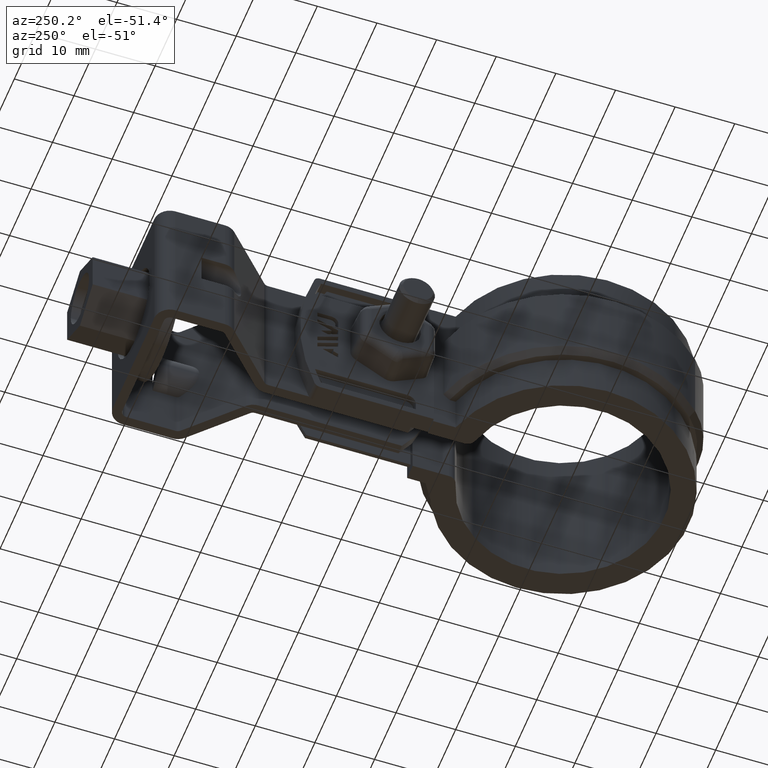
[diagram: clean part render]
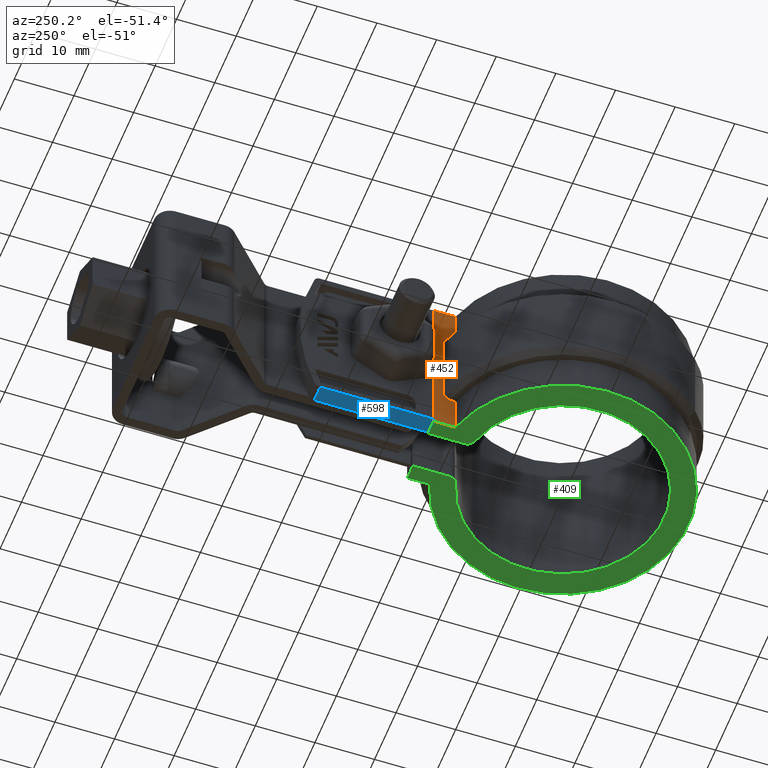
[diagram: same view with three faces highlighted in distinct colors, each labeled with its STEP entity id]
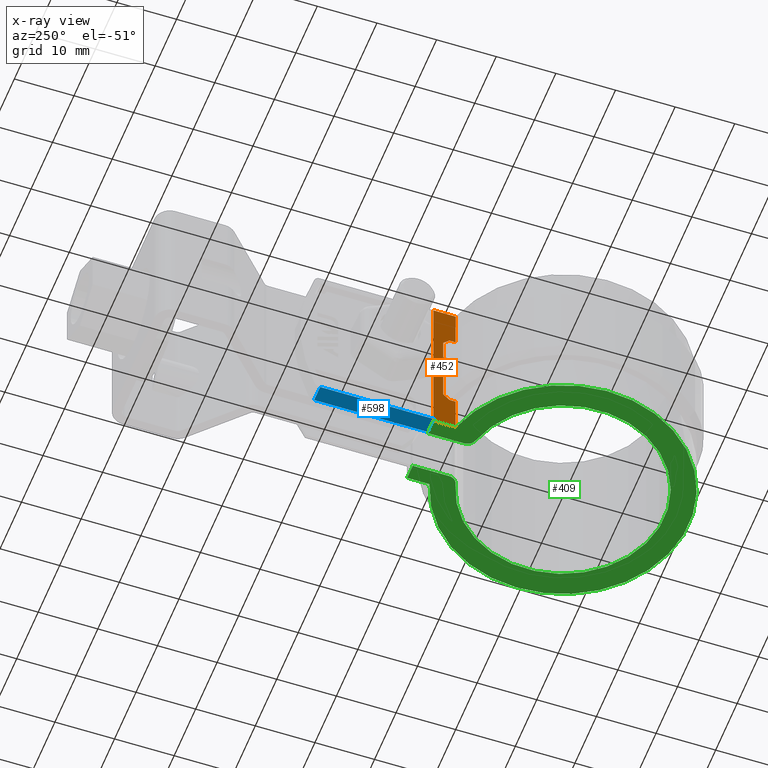
[diagram: x-ray of the same camera — body ghosted, the three highlighted faces saturated]
A machine part, auxiliary view with three faces highlighted in distinct colors.
The next image is the same camera in x-ray (body ghosted, the three faces saturated) — at least one of them is partly hidden behind the body in this view.
Their STEP definitions:

[orange] entity #452 — the highlighted planar face has unit normal (-1, 0, 0).
#452 = ADVANCED_FACE( '', ( #879 ), #880, .T. );
#879 = FACE_OUTER_BOUND( '', #1972, .T. );
#880 = PLANE( '', #1973 );
#1972 = EDGE_LOOP( '', ( #4316, #4317, #4318, #4319, #4320, #4321, #4322, #4323, #4324, #4325 ) );
#1973 = AXIS2_PLACEMENT_3D( '', #4326, #4327, #4328 );
#4316 = ORIENTED_EDGE( '', *, *, #6662, .F. );
#4317 = ORIENTED_EDGE( '', *, *, #6663, .T. );
#4318 = ORIENTED_EDGE( '', *, *, #6497, .T. );
#4319 = ORIENTED_EDGE( '', *, *, #6664, .T. );
#4320 = ORIENTED_EDGE( '', *, *, #6665, .T. );
#4321 = ORIENTED_EDGE( '', *, *, #6611, .T. );
#4322 = ORIENTED_EDGE( '', *, *, #6666, .T. );
#4323 = ORIENTED_EDGE( '', *, *, #6509, .T. );
#4324 = ORIENTED_EDGE( '', *, *, #6513, .F. );
#4325 = ORIENTED_EDGE( '', *, *, #6667, .T. );
#4326 = CARTESIAN_POINT( '', ( -6.10000000000002, 24.4800000000000, -26.5000000000000 ) );
#4327 = DIRECTION( '', ( -1.00000000000000, 6.07153216591882E-017, 0.000000000000000 ) );
#4328 = DIRECTION( '', ( 0.000000000000000, 0.000000000000000, 1.00000000000000 ) );
#6497 = EDGE_CURVE( '', #7516, #7514, #7517, .F. );
#6509 = EDGE_CURVE( '', #7539, #7540, #7541, .F. );
#6513 = EDGE_CURVE( '', #7544, #7540, #7546, .T. );
#6611 = EDGE_CURVE( '', #7717, #7718, #7719, .F. );
#6662 = EDGE_CURVE( '', #7804, #7805, #7806, .T. );
#6663 = EDGE_CURVE( '', #7804, #7516, #7807, .T. );
#6664 = EDGE_CURVE( '', #7514, #7808, #7809, .F. );
#6665 = EDGE_CURVE( '', #7808, #7717, #7810, .F. );
#6666 = EDGE_CURVE( '', #7718, #7539, #7811, .F. );
#6667 = EDGE_CURVE( '', #7544, #7805, #7812, .F. );
#7514 = VERTEX_POINT( '', #9844 );
#7516 = VERTEX_POINT( '', #9846 );
#7517 = LINE( '', #9847, #9848 );
#7539 = VERTEX_POINT( '', #9878 );
#7540 = VERTEX_POINT( '', #9879 );
#7541 = B_SPLINE_CURVE_WITH_KNOTS( '', 3, ( #9880, #9881, #9882, #9883 ), .UNSPECIFIED., .F., .F., ( 4, 4 ), ( 707.130334014855, 707.131788933458 ), .UNSPECIFIED. );
#7544 = VERTEX_POINT( '', #9886 );
#7546 = LINE( '', #9888, #9889 );
#7717 = VERTEX_POINT( '', #10796 );
#7718 = VERTEX_POINT( '', #10797 );
#7719 = B_SPLINE_CURVE_WITH_KNOTS( '', 3, ( #10798, #10799, #10800, #10801 ), .UNSPECIFIED., .F., .F., ( 4, 4 ), ( 707.074701658094, 707.076143413959 ), .UNSPECIFIED. );
#7804 = VERTEX_POINT( '', #10942 );
#7805 = VERTEX_POINT( '', #10943 );
#7806 = LINE( '', #10944, #10945 );
#7807 = LINE( '', #10946, #10947 );
#7808 = VERTEX_POINT( '', #10948 );
#7809 = LINE( '', #10949, #10950 );
#7810 = LINE( '', #10951, #10952 );
#7811 = LINE( '', #10953, #10954 );
#7812 = LINE( '', #10955, #10956 );
#9844 = CARTESIAN_POINT( '', ( -6.10000000000002, 20.1937867919813, -26.5000000000000 ) );
#9846 = CARTESIAN_POINT( '', ( -6.10000000000001, 23.9443584449549, -26.5000000000000 ) );
#9847 = CARTESIAN_POINT( '', ( -6.10000000000002, 24.4800000000000, -26.5000000000000 ) );
#9848 = VECTOR( '', #12676, 1000.00000000000 );
#9878 = CARTESIAN_POINT( '', ( -6.10000000000002, 22.2748518513592, -6.00000000000000 ) );
#9879 = CARTESIAN_POINT( '', ( -6.10000000000002, 21.2362667387655, -5.00000000000000 ) );
#9880 = CARTESIAN_POINT( '', ( -6.10000000000002, 21.2362667387879, -5.00000000002148 ) );
#9881 = CARTESIAN_POINT( '', ( -6.10000000000002, 21.5827481550320, -5.33301524217520 ) );
#9882 = CARTESIAN_POINT( '', ( -6.10000000000002, 21.9289303497823, -5.66636284044924 ) );
#9883 = CARTESIAN_POINT( '', ( -6.10000000000002, 22.2748518513816, -6.00000000002165 ) );
#9886 = CARTESIAN_POINT( '', ( -6.10000000000002, 20.1937867919813, -5.00000000000000 ) );
#9888 = CARTESIAN_POINT( '', ( -6.10000000000002, -6.56853044178618E-015, -5.00000000000000 ) );
#9889 = VECTOR( '', #12706, 1000.00000000000 );
#10796 = CARTESIAN_POINT( '', ( -6.10000000000002, 21.2362667387655, -20.0000000000000 ) );
#10797 = CARTESIAN_POINT( '', ( -6.10000000000002, 22.2748518513592, -19.0000000000000 ) );
#10798 = CARTESIAN_POINT( '', ( -6.10000000000002, 22.2748518513633, -18.9999999999960 ) );
#10799 = CARTESIAN_POINT( '', ( -6.10000000000002, 21.9289381047444, -19.3336296799824 ) );
#10800 = CARTESIAN_POINT( '', ( -6.10000000000002, 21.5827562876147, -19.6669769413190 ) );
#10801 = CARTESIAN_POINT( '', ( -6.10000000000002, 21.2362667387752, -19.9999999999907 ) );
#10942 = CARTESIAN_POINT( '', ( -6.10000000000002, 23.9443584449549, 1.50000000000000 ) );
#10943 = CARTESIAN_POINT( '', ( -6.10000000000002, 20.1937867919813, 1.50000000000000 ) );
#10944 = CARTESIAN_POINT( '', ( -6.10000000000002, 3.70363462121049E-016, 1.50000000000000 ) );
#10945 = VECTOR( '', #12875, 1000.00000000000 );
#10946 = CARTESIAN_POINT( '', ( -6.10000000000002, 23.9443584449549, -26.5000000000000 ) );
#10947 = VECTOR( '', #12876, 1000.00000000000 );
#10948 = CARTESIAN_POINT( '', ( -6.10000000000002, 20.1937867919813, -20.0000000000000 ) );
#10949 = CARTESIAN_POINT( '', ( -6.10000000000002, 20.1937867919813, -26.5000000000000 ) );
#10950 = VECTOR( '', #12877, 1000.00000000000 );
#10951 = CARTESIAN_POINT( '', ( -6.10000000000002, 24.4800000000000, -20.0000000000000 ) );
#10952 = VECTOR( '', #12878, 1000.00000000000 );
#10953 = CARTESIAN_POINT( '', ( -6.10000000000002, 22.2748518513592, -20.0000000000000 ) );
#10954 = VECTOR( '', #12879, 1000.00000000000 );
#10955 = CARTESIAN_POINT( '', ( -6.10000000000002, 20.1937867919813, -26.5000000000000 ) );
#10956 = VECTOR( '', #12880, 1000.00000000000 );
#12676 = DIRECTION( '', ( 6.07153216591882E-017, 1.00000000000000, 0.000000000000000 ) );
#12706 = DIRECTION( '', ( 6.07153216591882E-017, 1.00000000000000, 0.000000000000000 ) );
#12875 = DIRECTION( '', ( -6.07153216591882E-017, -1.00000000000000, 0.000000000000000 ) );
#12876 = DIRECTION( '', ( 0.000000000000000, 0.000000000000000, -1.00000000000000 ) );
#12877 = DIRECTION( '', ( 0.000000000000000, 0.000000000000000, -1.00000000000000 ) );
#12878 = DIRECTION( '', ( -6.07153216591882E-017, -1.00000000000000, 0.000000000000000 ) );
#12879 = DIRECTION( '', ( 0.000000000000000, 0.000000000000000, -1.00000000000000 ) );
#12880 = DIRECTION( '', ( 0.000000000000000, 0.000000000000000, -1.00000000000000 ) );

[blue] entity #598 — the highlighted planar face has unit normal (0, -0, 1).
#598 = ADVANCED_FACE( '', ( #1204 ), #1205, .F. );
#1204 = FACE_OUTER_BOUND( '', #2363, .T. );
#1205 = PLANE( '', #2364 );
#2363 = EDGE_LOOP( '', ( #5655, #5656, #5657, #5658 ) );
#2364 = AXIS2_PLACEMENT_3D( '', #5659, #5660, #5661 );
#5655 = ORIENTED_EDGE( '', *, *, #6954, .F. );
#5656 = ORIENTED_EDGE( '', *, *, #7126, .T. );
#5657 = ORIENTED_EDGE( '', *, *, #7143, .F. );
#5658 = ORIENTED_EDGE( '', *, *, #7144, .F. );
#5659 = CARTESIAN_POINT( '', ( -6.30000000000010, 26.9443584449554, -26.2000000000080 ) );
#5660 = DIRECTION( '', ( 7.93845865984130E-036, -1.27307474615306E-016, 1.00000000000000 ) );
#5661 = DIRECTION( '', ( 1.00000000000000, 6.23565794846650E-020, 1.33638235504610E-051 ) );
#6954 = EDGE_CURVE( '', #8301, #8303, #8304, .T. );
#7126 = EDGE_CURVE( '', #8301, #8591, #8594, .T. );
#7143 = EDGE_CURVE( '', #8617, #8591, #8618, .T. );
#7144 = EDGE_CURVE( '', #8303, #8617, #8619, .T. );
#8301 = VERTEX_POINT( '', #11725 );
#8303 = VERTEX_POINT( '', #11727 );
#8304 = LINE( '', #11728, #11729 );
#8591 = VERTEX_POINT( '', #12151 );
#8594 = LINE( '', #12154, #12155 );
#8617 = VERTEX_POINT( '', #12194 );
#8618 = LINE( '', #12195, #12196 );
#8619 = LINE( '', #12197, #12198 );
#11725 = CARTESIAN_POINT( '', ( -6.30000000000010, 42.9878146806459, -26.2000000000080 ) );
#11727 = CARTESIAN_POINT( '', ( -6.30000000000010, 23.9443584449554, -26.2000000000080 ) );
#11728 = CARTESIAN_POINT( '', ( -6.30000000000010, 26.9443584449554, -26.2000000000080 ) );
#11729 = VECTOR( '', #13291, 1000.00000000000 );
#12151 = CARTESIAN_POINT( '', ( -3.50000000000010, 42.9878146806459, -26.2000000000080 ) );
#12154 = CARTESIAN_POINT( '', ( -3.50000000000010, 42.9878146806459, -26.2000000000080 ) );
#12155 = VECTOR( '', #13535, 1000.00000000000 );
#12194 = CARTESIAN_POINT( '', ( -3.50000000000010, 23.9443584449553, -26.2000000000080 ) );
#12195 = CARTESIAN_POINT( '', ( -3.50000000000010, 23.9443584449554, -26.2000000000080 ) );
#12196 = VECTOR( '', #13552, 1000.00000000000 );
#12197 = CARTESIAN_POINT( '', ( -6.30000000000010, 23.9443584449554, -26.2000000000080 ) );
#12198 = VECTOR( '', #13553, 1000.00000000000 );
#13291 = DIRECTION( '', ( -5.56970201441962E-017, -1.00000000000000, -1.27307474615306E-016 ) );
#13535 = DIRECTION( '', ( 1.00000000000000, 1.77553823037274E-016, -1.31611162143792E-020 ) );
#13552 = DIRECTION( '', ( 5.56970201441962E-017, 1.00000000000000, 5.55111512312578E-017 ) );
#13553 = DIRECTION( '', ( 1.00000000000000, -5.53681883903847E-017, 6.23565794846579E-020 ) );

[green] entity #409 — the highlighted planar face has unit normal (0, 0, 1).
#409 = ADVANCED_FACE( '', ( #793 ), #794, .F. );
#793 = FACE_OUTER_BOUND( '', #1694, .T. );
#794 = PLANE( '', #1695 );
#1694 = EDGE_LOOP( '', ( #3493, #3494, #3495, #3496, #3497, #3498, #3499, #3500, #3501, #3502 ) );
#1695 = AXIS2_PLACEMENT_3D( '', #3503, #3504, #3505 );
#3493 = ORIENTED_EDGE( '', *, *, #6494, .F. );
#3494 = ORIENTED_EDGE( '', *, *, #6495, .F. );
#3495 = ORIENTED_EDGE( '', *, *, #6496, .F. );
#3496 = ORIENTED_EDGE( '', *, *, #6497, .F. );
#3497 = ORIENTED_EDGE( '', *, *, #6498, .F. );
#3498 = ORIENTED_EDGE( '', *, *, #6499, .F. );
#3499 = ORIENTED_EDGE( '', *, *, #6500, .T. );
#3500 = ORIENTED_EDGE( '', *, *, #6501, .T. );
#3501 = ORIENTED_EDGE( '', *, *, #6502, .T. );
#3502 = ORIENTED_EDGE( '', *, *, #6503, .F. );
#3503 = CARTESIAN_POINT( '', ( -4.33680868994202E-015, 0.000000000000000, -26.5000000000000 ) );
#3504 = DIRECTION( '', ( 0.000000000000000, 0.000000000000000, 1.00000000000000 ) );
#3505 = DIRECTION( '', ( 1.00000000000000, 0.000000000000000, 0.000000000000000 ) );
#6494 = EDGE_CURVE( '', #7509, #7510, #7511, .F. );
#6495 = EDGE_CURVE( '', #7512, #7509, #7513, .F. );
#6496 = EDGE_CURVE( '', #7514, #7512, #7515, .T. );
#6497 = EDGE_CURVE( '', #7516, #7514, #7517, .F. );
#6498 = EDGE_CURVE( '', #7518, #7516, #7519, .F. );
#6499 = EDGE_CURVE( '', #7520, #7518, #7521, .F. );
#6500 = EDGE_CURVE( '', #7520, #7522, #7523, .F. );
#6501 = EDGE_CURVE( '', #7522, #7524, #7525, .T. );
#6502 = EDGE_CURVE( '', #7524, #7526, #7527, .F. );
#6503 = EDGE_CURVE( '', #7510, #7526, #7528, .F. );
#7509 = VERTEX_POINT( '', #9837 );
#7510 = VERTEX_POINT( '', #9838 );
#7511 = LINE( '', #9839, #9840 );
#7512 = VERTEX_POINT( '', #9841 );
#7513 = LINE( '', #9842, #9843 );
#7514 = VERTEX_POINT( '', #9844 );
#7515 = CIRCLE( '', #9845, 21.0950000000000 );
#7516 = VERTEX_POINT( '', #9846 );
#7517 = LINE( '', #9847, #9848 );
#7518 = VERTEX_POINT( '', #9849 );
#7519 = LINE( '', #9850, #9851 );
#7520 = VERTEX_POINT( '', #9852 );
#7521 = LINE( '', #9853, #9854 );
#7522 = VERTEX_POINT( '', #9855 );
#7523 = CIRCLE( '', #9856, 1.50000000000000 );
#7524 = VERTEX_POINT( '', #9857 );
#7525 = CIRCLE( '', #9858, 17.0000000000000 );
#7526 = VERTEX_POINT( '', #9859 );
#7527 = CIRCLE( '', #9860, 1.50000000000000 );
#7528 = LINE( '', #9861, #9862 );
#9837 = CARTESIAN_POINT( '', ( 6.09999999999998, 23.9443584449549, -26.5000000000000 ) );
#9838 = CARTESIAN_POINT( '', ( 3.49999999999999, 23.9443584449549, -26.5000000000000 ) );
#9839 = CARTESIAN_POINT( '', ( 545.239706953718, 23.9443584449549, -26.5000000000000 ) );
#9840 = VECTOR( '', #12671, 1000.00000000000 );
#9841 = CARTESIAN_POINT( '', ( 6.09999999999997, 20.1937867919813, -26.5000000000000 ) );
#9842 = CARTESIAN_POINT( '', ( 6.09999999999997, 20.1937867919813, -26.5000000000000 ) );
#9843 = VECTOR( '', #12672, 1000.00000000000 );
#9844 = CARTESIAN_POINT( '', ( -6.10000000000002, 20.1937867919813, -26.5000000000000 ) );
#9845 = AXIS2_PLACEMENT_3D( '', #12673, #12674, #12675 );
#9846 = CARTESIAN_POINT( '', ( -6.10000000000001, 23.9443584449549, -26.5000000000000 ) );
#9847 = CARTESIAN_POINT( '', ( -6.10000000000002, 24.4800000000000, -26.5000000000000 ) );
#9848 = VECTOR( '', #12676, 1000.00000000000 );
#9849 = CARTESIAN_POINT( '', ( -3.50000000000002, 23.9443584449549, -26.5000000000000 ) );
#9850 = CARTESIAN_POINT( '', ( 545.239706953718, 23.9443584449549, -26.5000000000000 ) );
#9851 = VECTOR( '', #12677, 1000.00000000000 );
#9852 = CARTESIAN_POINT( '', ( -3.50000000000001, 17.8115131305569, -26.5000000000000 ) );
#9853 = CARTESIAN_POINT( '', ( -3.50000000000001, 16.6306952650814, -26.5000000000000 ) );
#9854 = VECTOR( '', #12678, 1000.00000000000 );
#9855 = CARTESIAN_POINT( '', ( -4.59459459459459, 16.3673363902415, -26.5000000000000 ) );
#9856 = AXIS2_PLACEMENT_3D( '', #12679, #12680, #12681 );
#9857 = CARTESIAN_POINT( '', ( 4.59459459459459, 16.3673363902415, -26.5000000000000 ) );
#9858 = AXIS2_PLACEMENT_3D( '', #12682, #12683, #12684 );
#9859 = CARTESIAN_POINT( '', ( 3.50000000000000, 17.8115131305569, -26.5000000000000 ) );
#9860 = AXIS2_PLACEMENT_3D( '', #12685, #12686, #12687 );
#9861 = CARTESIAN_POINT( '', ( 3.50000000000000, 24.4800000000000, -26.5000000000000 ) );
#9862 = VECTOR( '', #12688, 1000.00000000000 );
#12671 = DIRECTION( '', ( 1.00000000000000, 0.000000000000000, 0.000000000000000 ) );
#12672 = DIRECTION( '', ( -6.07153216591882E-017, -1.00000000000000, 0.000000000000000 ) );
#12673 = CARTESIAN_POINT( '', ( -4.33680868994202E-015, 0.000000000000000, -26.5000000000000 ) );
#12674 = DIRECTION( '', ( 0.000000000000000, 0.000000000000000, 1.00000000000000 ) );
#12675 = DIRECTION( '', ( 1.00000000000000, 0.000000000000000, 0.000000000000000 ) );
#12676 = DIRECTION( '', ( 6.07153216591882E-017, 1.00000000000000, 0.000000000000000 ) );
#12677 = DIRECTION( '', ( 1.00000000000000, 0.000000000000000, 0.000000000000000 ) );
#12678 = DIRECTION( '', ( -6.07153216591882E-017, -1.00000000000000, 0.000000000000000 ) );
#12679 = CARTESIAN_POINT( '', ( -5.00000000000000, 17.8115131305569, -26.5000000000000 ) );
#12680 = DIRECTION( '', ( 0.000000000000000, 0.000000000000000, 1.00000000000000 ) );
#12681 = DIRECTION( '', ( 1.00000000000000, 0.000000000000000, 0.000000000000000 ) );
#12682 = CARTESIAN_POINT( '', ( 0.000000000000000, 0.000000000000000, -26.5000000000000 ) );
#12683 = DIRECTION( '', ( 0.000000000000000, 0.000000000000000, 1.00000000000000 ) );
#12684 = DIRECTION( '', ( 1.00000000000000, 0.000000000000000, 0.000000000000000 ) );
#12685 = CARTESIAN_POINT( '', ( 4.99999999999999, 17.8115131305569, -26.5000000000000 ) );
#12686 = DIRECTION( '', ( 0.000000000000000, 0.000000000000000, 1.00000000000000 ) );
#12687 = DIRECTION( '', ( 1.00000000000000, 0.000000000000000, 0.000000000000000 ) );
#12688 = DIRECTION( '', ( 6.07153216591882E-017, 1.00000000000000, 0.000000000000000 ) );